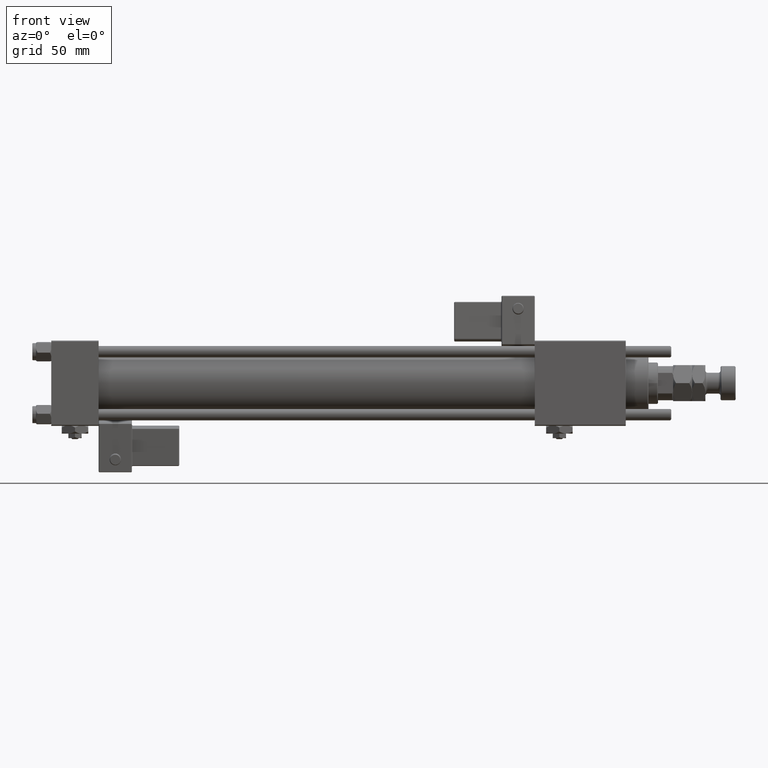
[diagram: clean part render]
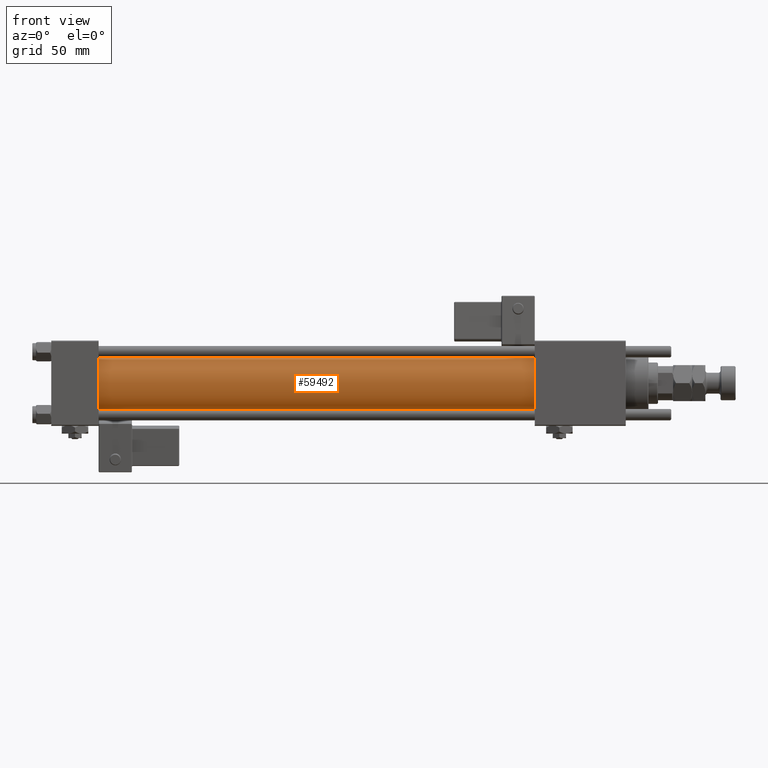
[diagram: same view with one face highlighted and labeled with its STEP entity id]
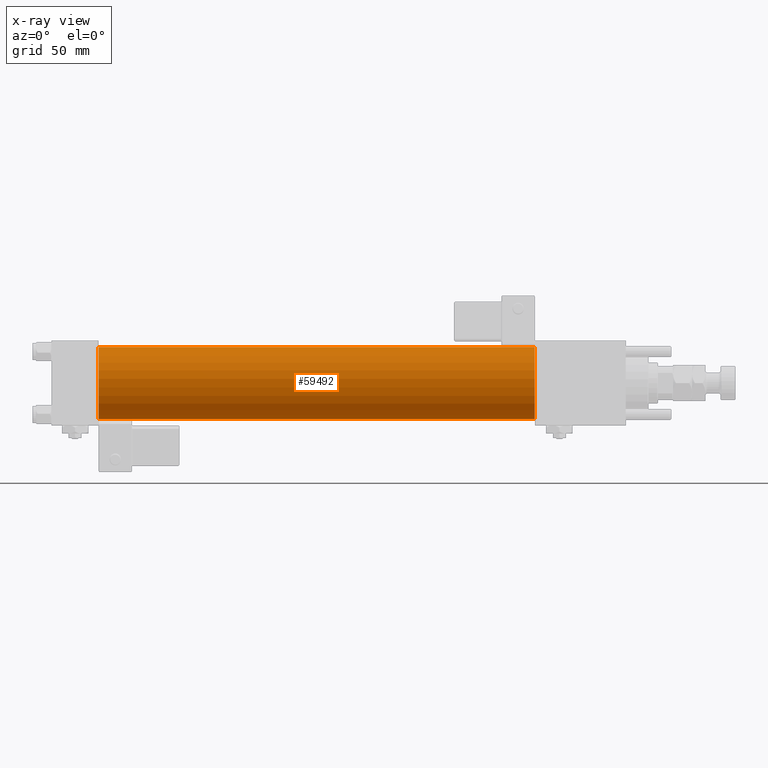
[diagram: x-ray of the same camera — body ghosted, the highlighted face saturated]
A machine part, front view. The second image highlights one B-rep face of the part: STEP entity #59492.
The next image is the same camera in x-ray: the body ghosted, the highlighted face saturated — about 0% of this face is hidden behind the body in this view.
In plain terms, the highlighted cylindrical surface (edge-blend (fillet) strip) has radius 19 mm, axis along (-1, -0, -0).
Its self-contained STEP definition (entity closure, byte-faithful):
#2806 = ORIENTED_EDGE ( 'NONE', *, *, #62118, .T. ) ;
#3279 = AXIS2_PLACEMENT_3D ( 'NONE', #7305, #56779, #46964 ) ;
#5718 = CARTESIAN_POINT ( 'NONE',  ( 24.99999999999999289, -2.602085213965210642E-15, 0.000000000000000000 ) ) ;
#6020 = ORIENTED_EDGE ( 'NONE', *, *, #18108, .F. ) ;
#7305 = CARTESIAN_POINT ( 'NONE',  ( 255.0000000000000000, -2.602085213965210642E-15, 0.000000000000000000 ) ) ;
#7416 = VERTEX_POINT ( 'NONE', #21274 ) ;
#7916 = DIRECTION ( 'NONE',  ( -1.000000000000000000, -0.000000000000000000, -0.000000000000000000 ) ) ;
#9409 = DIRECTION ( 'NONE',  ( -1.000000000000000000, -0.000000000000000000, -0.000000000000000000 ) ) ;
#12126 = DIRECTION ( 'NONE',  ( -1.000000000000000000, -0.000000000000000000, -0.000000000000000000 ) ) ;
#17689 = ORIENTED_EDGE ( 'NONE', *, *, #20700, .T. ) ;
#18108 = EDGE_CURVE ( 'NONE', #41749, #42072, #23511, .T. ) ;
#20700 = EDGE_CURVE ( 'NONE', #7416, #48087, #58141, .T. ) ;
#21274 = CARTESIAN_POINT ( 'NONE',  ( 24.99999999999999289, -2.602085213965210642E-15, 19.00000000000000000 ) ) ;
#21873 = FACE_OUTER_BOUND ( 'NONE', #54720, .T. ) ;
#23511 = CIRCLE ( 'NONE', #3279, 19.00000000000000000 ) ;
#24427 = DIRECTION ( 'NONE',  ( 0.000000000000000000, 0.000000000000000000, 1.000000000000000000 ) ) ;
#29382 = LINE ( 'NONE', #62407, #41160 ) ;
#29776 = AXIS2_PLACEMENT_3D ( 'NONE', #5718, #48581, #24427 ) ;
#30991 = CARTESIAN_POINT ( 'NONE',  ( 255.0000000000000000, -2.752562955852396712E-16, -19.00000000000000000 ) ) ;
#31159 = CARTESIAN_POINT ( 'NONE',  ( 255.0000000000000000, -2.752562955852396712E-16, -19.00000000000000000 ) ) ;
#33927 = AXIS2_PLACEMENT_3D ( 'NONE', #36775, #7916, #62163 ) ;
#36775 = CARTESIAN_POINT ( 'NONE',  ( 255.0000000000000000, -2.602085213965210642E-15, 0.000000000000000000 ) ) ;
#39825 = VECTOR ( 'NONE', #12126, 1000.000000000000000 ) ;
#41160 = VECTOR ( 'NONE', #9409, 1000.000000000000000 ) ;
#41247 = CYLINDRICAL_SURFACE ( 'NONE', #33927, 19.00000000000000000 ) ;
#41749 = VERTEX_POINT ( 'NONE', #61456 ) ;
#42072 = VERTEX_POINT ( 'NONE', #30991 ) ;
#46964 = DIRECTION ( 'NONE',  ( 0.000000000000000000, 0.000000000000000000, -1.000000000000000000 ) ) ;
#48087 = VERTEX_POINT ( 'NONE', #50761 ) ;
#48581 = DIRECTION ( 'NONE',  ( 1.000000000000000000, -0.000000000000000000, 0.000000000000000000 ) ) ;
#50761 = CARTESIAN_POINT ( 'NONE',  ( 24.99999999999999289, -2.752562955852396712E-16, -19.00000000000000000 ) ) ;
#51239 = EDGE_CURVE ( 'NONE', #42072, #48087, #54058, .T. ) ;
#54058 = LINE ( 'NONE', #31159, #39825 ) ;
#54720 = EDGE_LOOP ( 'NONE', ( #58798, #6020, #2806, #17689 ) ) ;
#56779 = DIRECTION ( 'NONE',  ( 1.000000000000000000, 0.000000000000000000, 0.000000000000000000 ) ) ;
#58141 = CIRCLE ( 'NONE', #29776, 19.00000000000000000 ) ;
#58798 = ORIENTED_EDGE ( 'NONE', *, *, #51239, .F. ) ;
#59492 = ADVANCED_FACE ( 'NONE', ( #21873 ), #41247, .T. ) ;
#61456 = CARTESIAN_POINT ( 'NONE',  ( 255.0000000000000000, -2.602085213965210642E-15, 19.00000000000000000 ) ) ;
#62118 = EDGE_CURVE ( 'NONE', #41749, #7416, #29382, .T. ) ;
#62163 = DIRECTION ( 'NONE',  ( 0.000000000000000000, 0.000000000000000000, 1.000000000000000000 ) ) ;
#62407 = CARTESIAN_POINT ( 'NONE',  ( 255.0000000000000000, -2.602085213965210642E-15, 19.00000000000000000 ) ) ;